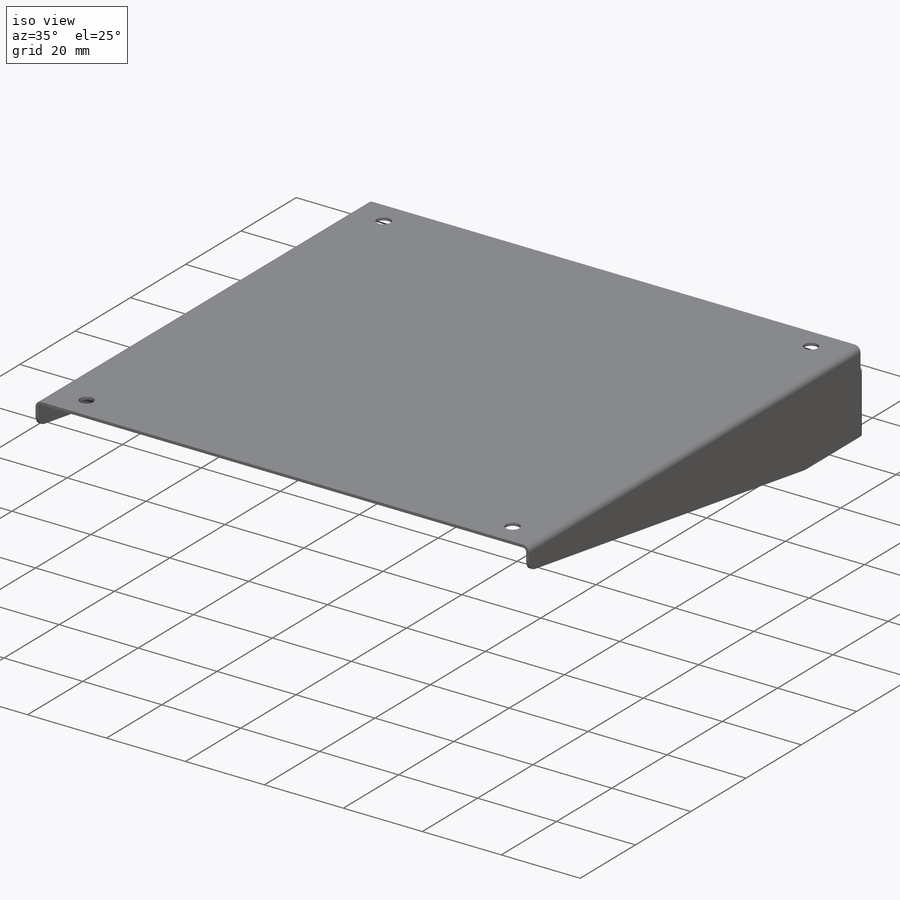
[diagram: iso view]
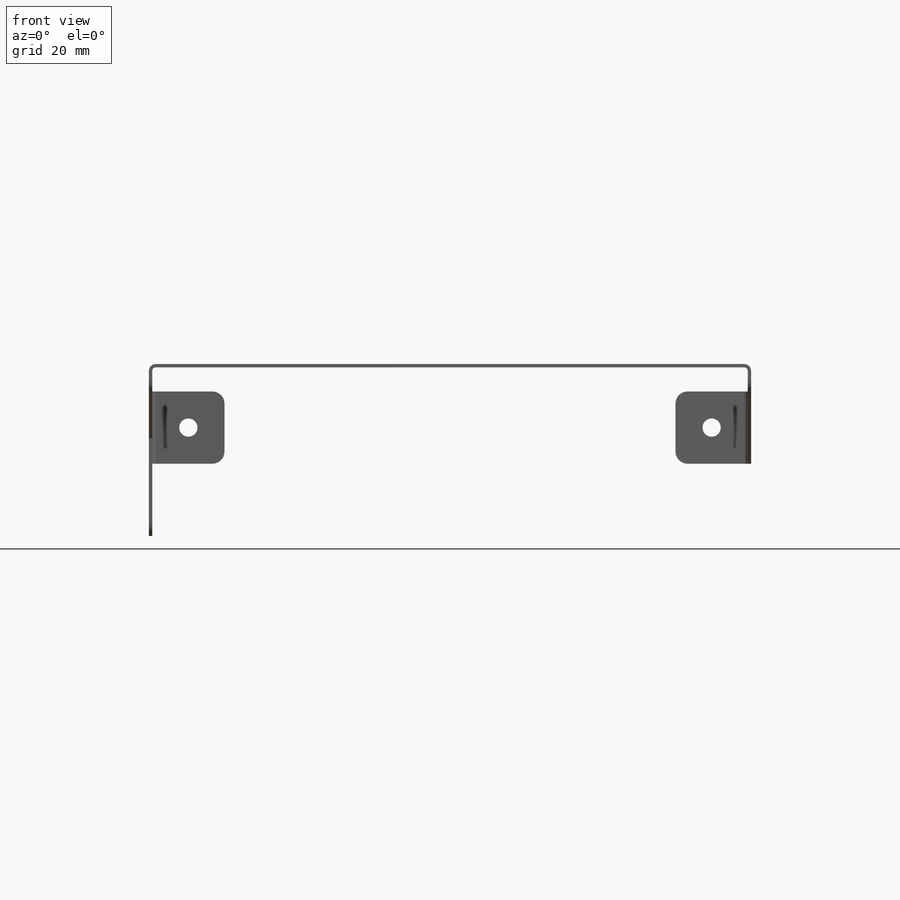
[diagram: front view]
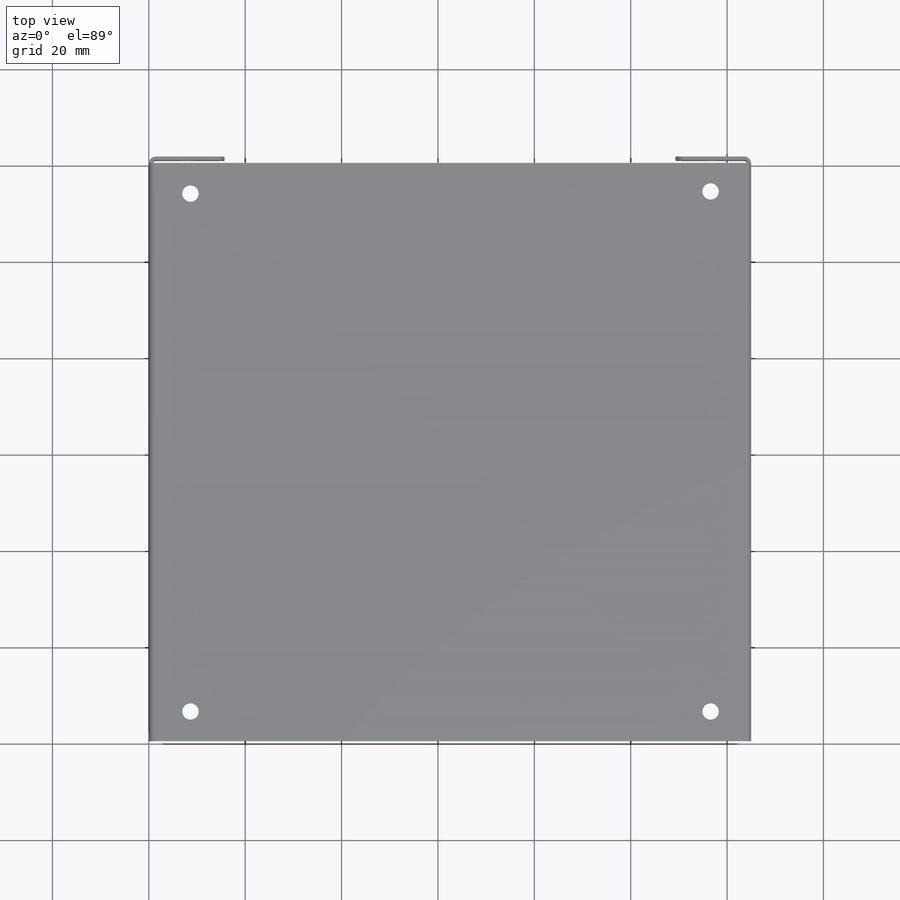
[diagram: top view]
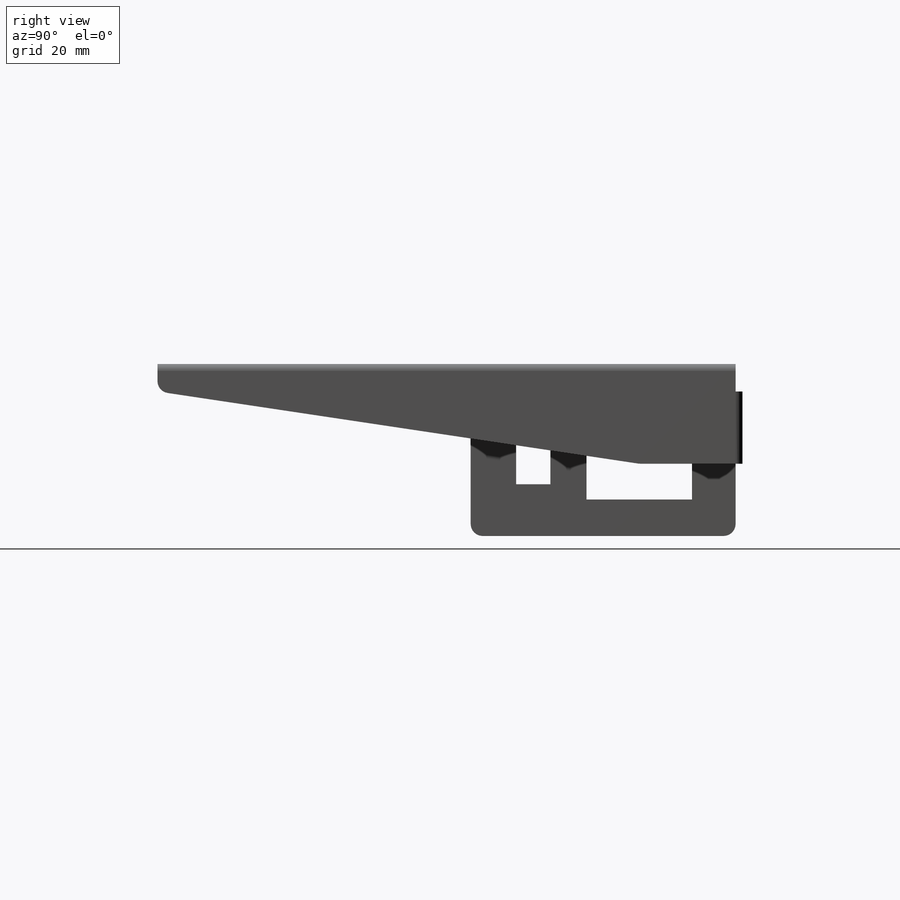
[diagram: right view]
SOLIDWORKS PART (.sldprt)
format: sldprt  version: not decoded by parser v0  size: 397,312 bytes
history: native  units: mm
features: sketch x11, sheet_metal_op x5, cut_extrude x2, material x1, hole x1 + 4 further entries (+11 scaffold rows collapsed; 1 parser-record rows omitted)
feature tree (36):
  scaffold x11  (default folders/planes/origin — collapsed)
  material  "Material <not specified>"
  sketch  "Sketch1"  dims[D1=125.0mm D2=120.0mm]
  sheet_metal_op  "Sheet-Metal1"
  sheet_metal_op  "Base-Flange1"
  sketch  "Sketch6"  dims[c1.D1=20.0mm c1.D2=20.0mm c1.D3=5.0mm c2.D1=0.7366mm c2.D4=90.0deg c2.D5=1.0 c2.D8=0.35mm c2.D9=0.35mm c3.D1=0.7366mm c3.D2=500.0mm c3.D3=0.0mm c3.D6=10.0mm c3.D7=20.0mm c3.Edge-Flange2=0.0]
  sketch  "Sketch9"  dims[c1.D1=25.0mm c1.D2=20.0mm c1.D3=5.0mm c2.D1=20.0mm c2.D4=35.0mm c2.D5=55.0mm c2.D2=20.0mm]
  sheet_metal_op  "EdgeBend2"
  sketch  "Sketch10"  dims[D3=3.4mm D4=3.4mm D5=3.4mm D6=3.4mm D1=107.95mm D2=107.95mm]
  cut_extrude  "Cut-Extrude1"  Depth=10mm Edge-Flange3=0
  sketch  "Sketch15"  dims[D1=15.0mm D2=15.0mm]
  sheet_metal_op  "EdgeBend3"  Edge-Flange4=0
  sketch  "Sketch20"  dims[D1=15.0mm D2=15.0mm]
  sheet_metal_op  "EdgeBend5"
  hole  "#6 Clearance Hole1"  Diameter=3.7973mm Depth=10mm
  sketch  "Sketch22"  dims[D1=7.5mm D2=7.5mm D3=7.5mm D4=7.5mm]
  sketch  "Sketch21"  dims[hole-wizard template sketch: 47 standard entries collapsed; hole parameters kept: c15.Hole Depth=10.0mm c15.D3=~14.816244mm c15.Drill Angle=118.0deg c15.D1=2.5mm c15.D0=2.5mm c16.D0=2.5mm c16.D7=5.0mm]
  sketch  "Sketch23"  dims[D1=21.9mm D2=19.1mm D3=12.8mm D4=7.1mm D5=7.5mm D6=20.0mm]
  cut_extrude  "Cut-Extrude2"  [1 undecoded]
  "Flat-Pattern1"
  sketch  "Bend-Lines1"
  sketch  "Bounding-Box1"
  "Flatten-<EdgeBend2>1"
  "Flatten-<EdgeBend3>1"
  "Flatten-<EdgeBend5>1"
  parser-record x1  (decoder bookkeeping rows leaked as tree rows — omitted from the tree; the rows remain in map.json)
decode coverage: 12 of 19 modeling features carry decoded parameters; 4 rows unclassified (native names shown)
note: ~ marks probable driven/reference dimensions
note: 1 parameter value undecoded
note: suppression state not decoded; provenance and decode notes live in map.json
